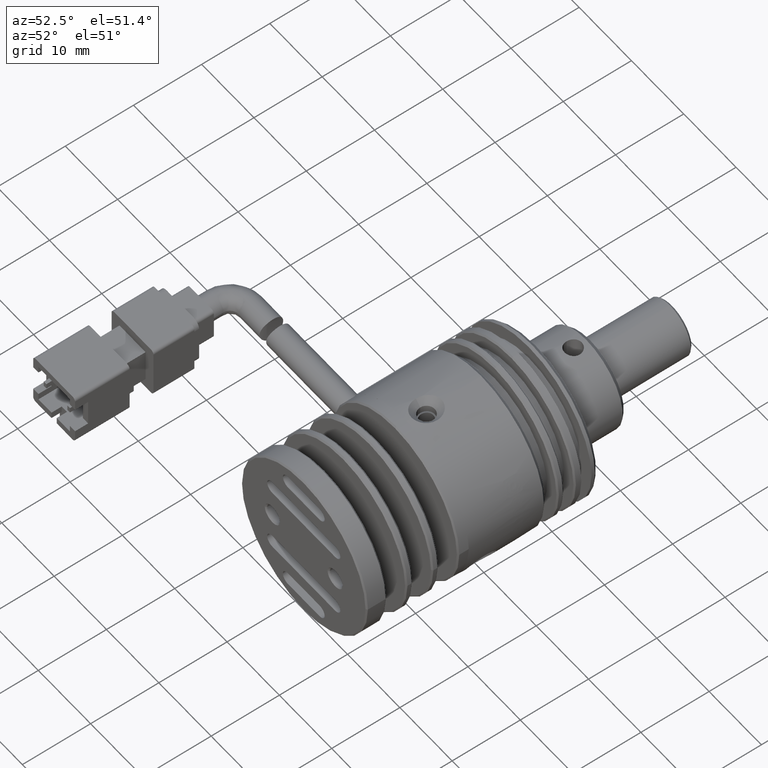
[diagram: clean part render]
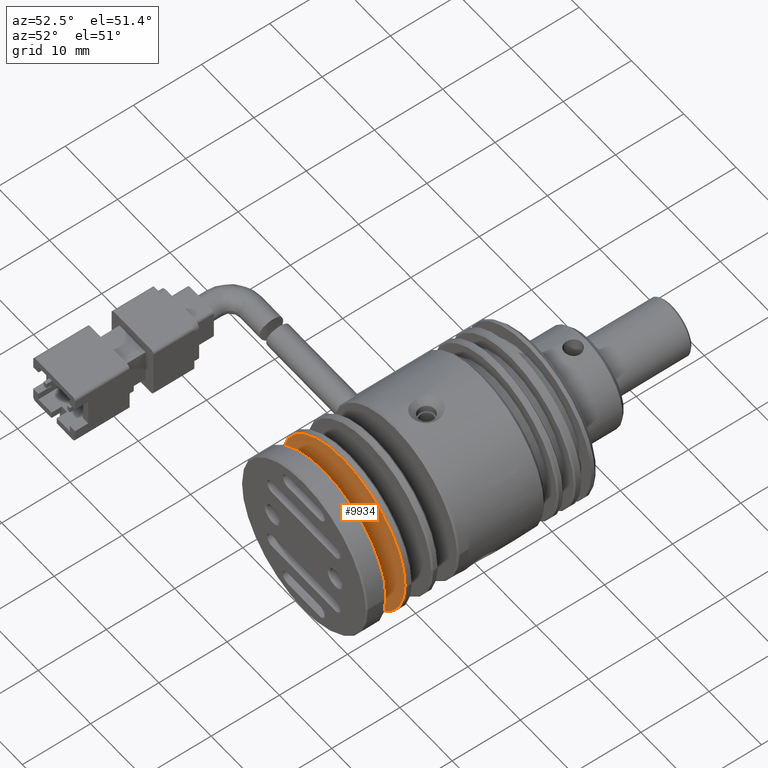
[diagram: same view with one face highlighted and labeled with its STEP entity id]
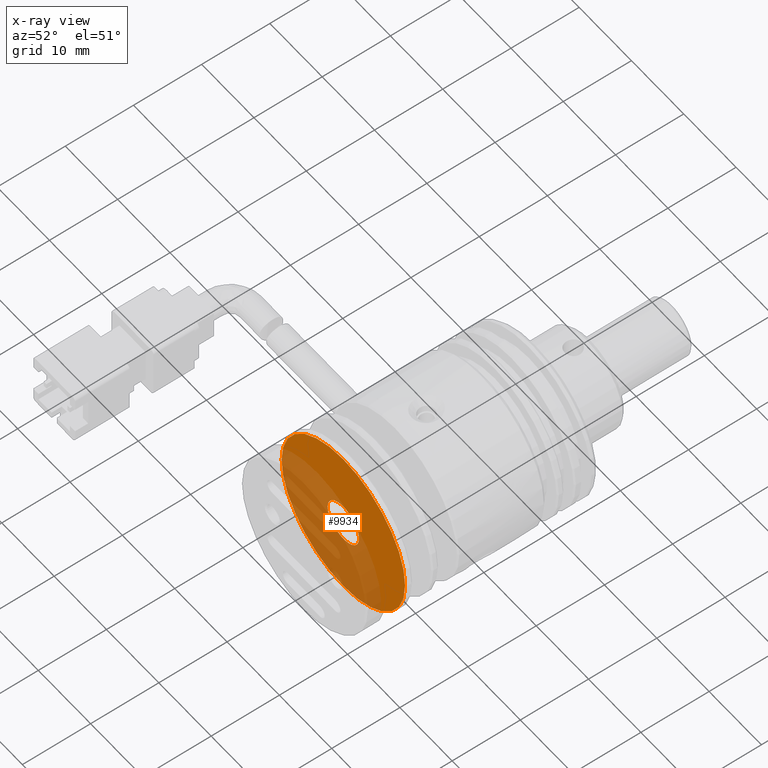
[diagram: x-ray of the same camera — body ghosted, the highlighted face saturated]
A machine part, auxiliary view. The second image highlights one B-rep face of the part: STEP entity #9934.
The next image is the same camera in x-ray: the body ghosted, the highlighted face saturated — about 50% of this face is hidden behind the body in this view.
In plain terms, the highlighted planar face has unit normal (-0, -1, 0).
Its self-contained STEP definition (entity closure, byte-faithful):
#7 = AXIS2_PLACEMENT_3D ( 'NONE', #19498, #4403, #19305 ) ;
#84 = ORIENTED_EDGE ( 'NONE', *, *, #9037, .T. ) ;
#617 = EDGE_LOOP ( 'NONE', ( #84, #15825 ) ) ;
#742 = EDGE_LOOP ( 'NONE', ( #12066, #9940 ) ) ;
#1265 = AXIS2_PLACEMENT_3D ( 'NONE', #14420, #6691, #6883 ) ;
#2620 = AXIS2_PLACEMENT_3D ( 'NONE', #18558, #18364, #10709 ) ;
#3876 = CARTESIAN_POINT ( 'NONE',  ( 2.574933787635819815, -24.91493551001259732, -20.97403592165939656 ) ) ;
#4403 = DIRECTION ( 'NONE',  ( 0.000000000000000000, 1.000000000000000000, 0.000000000000000000 ) ) ;
#4960 = FACE_OUTER_BOUND ( 'NONE', #617, .T. ) ;
#5690 = CIRCLE ( 'NONE', #7, 3.000000000000000000 ) ;
#5716 = CARTESIAN_POINT ( 'NONE',  ( 2.574933787635819815, -24.91493551001259732, 2.625964078340615071 ) ) ;
#6691 = DIRECTION ( 'NONE',  ( 0.000000000000000000, -1.000000000000000000, 0.000000000000000000 ) ) ;
#6883 = DIRECTION ( 'NONE',  ( 0.000000000000000000, 0.000000000000000000, 1.000000000000000000 ) ) ;
#7080 = EDGE_CURVE ( 'NONE', #16840, #8063, #13715, .T. ) ;
#8063 = VERTEX_POINT ( 'NONE', #8755 ) ;
#8755 = CARTESIAN_POINT ( 'NONE',  ( -0.4250662123641810175, -24.91493551001259732, -9.174035921659379866 ) ) ;
#9037 = EDGE_CURVE ( 'NONE', #19350, #16766, #10947, .T. ) ;
#9934 = ADVANCED_FACE ( 'NONE', ( #13960, #4960 ), #18845, .T. ) ;
#9940 = ORIENTED_EDGE ( 'NONE', *, *, #7080, .T. ) ;
#10709 = DIRECTION ( 'NONE',  ( -1.000000000000000000, 0.000000000000000000, 0.000000000000000000 ) ) ;
#10947 = CIRCLE ( 'NONE', #15081, 11.79999999999999893 ) ;
#11308 = EDGE_CURVE ( 'NONE', #16766, #19350, #17417, .T. ) ;
#11354 = EDGE_CURVE ( 'NONE', #8063, #16840, #5690, .T. ) ;
#11385 = CARTESIAN_POINT ( 'NONE',  ( 14.57493378763582115, -24.91493551001259732, -9.174035921659379866 ) ) ;
#12066 = ORIENTED_EDGE ( 'NONE', *, *, #11354, .T. ) ;
#13715 = CIRCLE ( 'NONE', #2620, 3.000000000000000000 ) ;
#13867 = DIRECTION ( 'NONE',  ( 0.000000000000000000, 0.000000000000000000, 1.000000000000000000 ) ) ;
#13960 = FACE_BOUND ( 'NONE', #742, .T. ) ;
#14259 = CARTESIAN_POINT ( 'NONE',  ( 2.574933787635819815, -24.91493551001259732, -9.174035921659379866 ) ) ;
#14420 = CARTESIAN_POINT ( 'NONE',  ( 2.574933787635819815, -24.91493551001259732, -9.174035921659379866 ) ) ;
#14752 = DIRECTION ( 'NONE',  ( -1.000000000000000000, 8.260587980841940012E-17, 0.000000000000000000 ) ) ;
#15081 = AXIS2_PLACEMENT_3D ( 'NONE', #14259, #18744, #13867 ) ;
#15825 = ORIENTED_EDGE ( 'NONE', *, *, #11308, .T. ) ;
#15964 = DIRECTION ( 'NONE',  ( -8.260587980841940012E-17, -1.000000000000000000, 0.000000000000000000 ) ) ;
#16766 = VERTEX_POINT ( 'NONE', #3876 ) ;
#16840 = VERTEX_POINT ( 'NONE', #17884 ) ;
#17417 = CIRCLE ( 'NONE', #1265, 11.79999999999999893 ) ;
#17884 = CARTESIAN_POINT ( 'NONE',  ( 5.574933787635820259, -24.91493551001259732, -9.174035921659379866 ) ) ;
#18364 = DIRECTION ( 'NONE',  ( 0.000000000000000000, 1.000000000000000000, 0.000000000000000000 ) ) ;
#18558 = CARTESIAN_POINT ( 'NONE',  ( 2.574933787635819815, -24.91493551001259732, -9.174035921659379866 ) ) ;
#18624 = AXIS2_PLACEMENT_3D ( 'NONE', #11385, #15964, #14752 ) ;
#18744 = DIRECTION ( 'NONE',  ( 0.000000000000000000, -1.000000000000000000, 0.000000000000000000 ) ) ;
#18845 = PLANE ( 'NONE',  #18624 ) ;
#19305 = DIRECTION ( 'NONE',  ( -1.000000000000000000, 0.000000000000000000, 0.000000000000000000 ) ) ;
#19350 = VERTEX_POINT ( 'NONE', #5716 ) ;
#19498 = CARTESIAN_POINT ( 'NONE',  ( 2.574933787635819815, -24.91493551001259732, -9.174035921659379866 ) ) ;